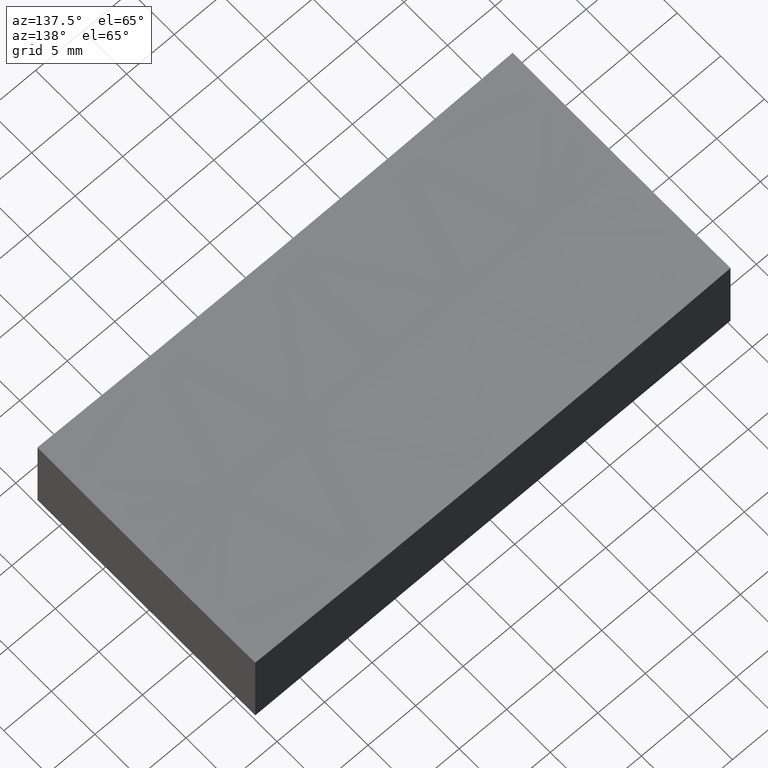
[diagram: clean part render]
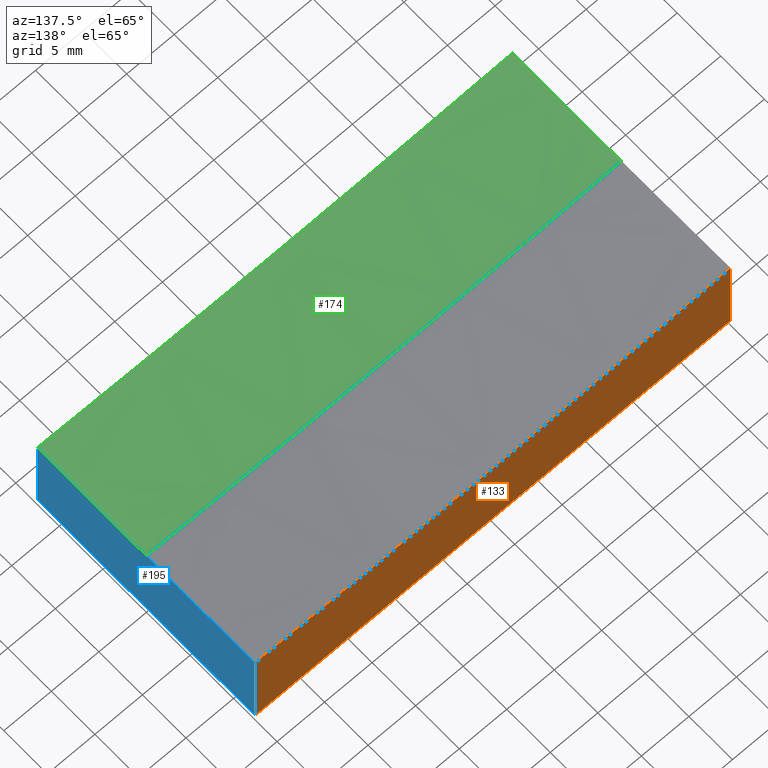
[diagram: same view with three faces highlighted in distinct colors, each labeled with its STEP entity id]
A machine part, auxiliary view with three faces highlighted in distinct colors.
Their STEP definitions:

[orange] entity #133 — the highlighted planar face has unit normal (0, -1, 0).
#3 = FACE_OUTER_BOUND ( 'NONE', #208, .T. ) ;
#8 = VERTEX_POINT ( 'NONE', #211 ) ;
#9 = CARTESIAN_POINT ( 'NONE',  ( 25.00000000000000355, 12.50000000000000000, 0.000000000000000000 ) ) ;
#16 = CIRCLE ( 'NONE', #189, 599.8697775350913162 ) ;
#22 = CARTESIAN_POINT ( 'NONE',  ( 25.00000000000000355, 12.50000000000000000, 15.00000000000000000 ) ) ;
#26 = VERTEX_POINT ( 'NONE', #9 ) ;
#31 = CARTESIAN_POINT ( 'NONE',  ( -25.00000000000000000, 12.50000000000000000, 0.000000000000000000 ) ) ;
#33 = EDGE_CURVE ( 'NONE', #26, #229, #132, .T. ) ;
#39 = VECTOR ( 'NONE', #160, 1000.000000000000000 ) ;
#46 = VERTEX_POINT ( 'NONE', #167 ) ;
#60 = DIRECTION ( 'NONE',  ( -0.000000000000000000, 1.000000000000000000, -0.000000000000000000 ) ) ;
#69 = VECTOR ( 'NONE', #161, 1000.000000000000000 ) ;
#73 = AXIS2_PLACEMENT_3D ( 'NONE', #162, #83, #219 ) ;
#77 = LINE ( 'NONE', #240, #69 ) ;
#78 = PLANE ( 'NONE',  #73 ) ;
#80 = CARTESIAN_POINT ( 'NONE',  ( 0.000000000000000000, 12.50000000000000000, 609.0000000000000000 ) ) ;
#83 = DIRECTION ( 'NONE',  ( 0.000000000000000000, -1.000000000000000000, 0.000000000000000000 ) ) ;
#96 = CARTESIAN_POINT ( 'NONE',  ( -25.00000000000000000, 12.50000000000000000, 0.000000000000000000 ) ) ;
#126 = ORIENTED_EDGE ( 'NONE', *, *, #151, .T. ) ;
#129 = DIRECTION ( 'NONE',  ( -1.000000000000000000, -0.000000000000000000, -0.000000000000000000 ) ) ;
#130 = DIRECTION ( 'NONE',  ( 0.000000000000000000, 0.000000000000000000, -1.000000000000000000 ) ) ;
#132 = LINE ( 'NONE', #31, #218 ) ;
#133 = ADVANCED_FACE ( 'NONE', ( #3 ), #78, .F. ) ;
#145 = ORIENTED_EDGE ( 'NONE', *, *, #242, .F. ) ;
#151 = EDGE_CURVE ( 'NONE', #46, #26, #201, .T. ) ;
#160 = DIRECTION ( 'NONE',  ( -0.000000000000000000, -0.000000000000000000, -1.000000000000000000 ) ) ;
#161 = DIRECTION ( 'NONE',  ( -0.000000000000000000, -0.000000000000000000, -1.000000000000000000 ) ) ;
#162 = CARTESIAN_POINT ( 'NONE',  ( -25.00000000000000000, 12.50000000000000000, 15.00000000000000000 ) ) ;
#165 = ORIENTED_EDGE ( 'NONE', *, *, #33, .T. ) ;
#167 = CARTESIAN_POINT ( 'NONE',  ( 25.00000000000000355, 12.50000000000000000, 9.651395263157391824 ) ) ;
#183 = ORIENTED_EDGE ( 'NONE', *, *, #193, .F. ) ;
#189 = AXIS2_PLACEMENT_3D ( 'NONE', #80, #60, #130 ) ;
#193 = EDGE_CURVE ( 'NONE', #46, #8, #16, .T. ) ;
#201 = LINE ( 'NONE', #22, #39 ) ;
#208 = EDGE_LOOP ( 'NONE', ( #183, #126, #165, #145 ) ) ;
#211 = CARTESIAN_POINT ( 'NONE',  ( -25.00000000000000000, 12.50000000000000000, 9.651395263157391824 ) ) ;
#218 = VECTOR ( 'NONE', #129, 1000.000000000000000 ) ;
#219 = DIRECTION ( 'NONE',  ( 0.000000000000000000, -0.000000000000000000, -1.000000000000000000 ) ) ;
#229 = VERTEX_POINT ( 'NONE', #96 ) ;
#240 = CARTESIAN_POINT ( 'NONE',  ( -25.00000000000000000, 12.50000000000000000, 15.00000000000000000 ) ) ;
#242 = EDGE_CURVE ( 'NONE', #8, #229, #77, .T. ) ;

[blue] entity #195 — the highlighted planar face has unit normal (-1, 0, 0).
#9 = CARTESIAN_POINT ( 'NONE',  ( 25.00000000000000355, 12.50000000000000000, 0.000000000000000000 ) ) ;
#12 = ORIENTED_EDGE ( 'NONE', *, *, #101, .F. ) ;
#13 = CARTESIAN_POINT ( 'NONE',  ( 25.00000000000000000, -6.938893903907228378E-15, 609.0000000000000000 ) ) ;
#20 = LINE ( 'NONE', #57, #233 ) ;
#21 = CARTESIAN_POINT ( 'NONE',  ( 25.00000000000000000, -6.938893903907228378E-15, 609.0000000000000000 ) ) ;
#22 = CARTESIAN_POINT ( 'NONE',  ( 25.00000000000000355, 12.50000000000000000, 15.00000000000000000 ) ) ;
#26 = VERTEX_POINT ( 'NONE', #9 ) ;
#27 = DIRECTION ( 'NONE',  ( 1.000000000000000000, -2.775557561562891351E-16, -0.000000000000000000 ) ) ;
#28 = EDGE_LOOP ( 'NONE', ( #59, #181, #121, #206, #12 ) ) ;
#35 = DIRECTION ( 'NONE',  ( 2.775557561562891351E-16, 1.000000000000000000, -0.000000000000000000 ) ) ;
#39 = VECTOR ( 'NONE', #160, 1000.000000000000000 ) ;
#41 = DIRECTION ( 'NONE',  ( -0.000000000000000000, -0.000000000000000000, -1.000000000000000000 ) ) ;
#46 = VERTEX_POINT ( 'NONE', #167 ) ;
#56 = EDGE_CURVE ( 'NONE', #62, #79, #110, .T. ) ;
#57 = CARTESIAN_POINT ( 'NONE',  ( 25.00000000000000355, 12.50000000000000000, 0.000000000000000000 ) ) ;
#58 = DIRECTION ( 'NONE',  ( -2.777970041428653968E-16, -1.000000000000000000, 0.000000000000000000 ) ) ;
#59 = ORIENTED_EDGE ( 'NONE', *, *, #56, .F. ) ;
#62 = VERTEX_POINT ( 'NONE', #107 ) ;
#64 = FACE_OUTER_BOUND ( 'NONE', #28, .T. ) ;
#79 = VERTEX_POINT ( 'NONE', #250 ) ;
#86 = PLANE ( 'NONE',  #89 ) ;
#88 = AXIS2_PLACEMENT_3D ( 'NONE', #13, #27, #209 ) ;
#89 = AXIS2_PLACEMENT_3D ( 'NONE', #168, #248, #187 ) ;
#98 = CARTESIAN_POINT ( 'NONE',  ( 24.99999999999999645, -12.50000000000000000, 15.00000000000000000 ) ) ;
#101 = EDGE_CURVE ( 'NONE', #79, #46, #127, .T. ) ;
#107 = CARTESIAN_POINT ( 'NONE',  ( 24.99999999999999645, -12.50000000000000000, 9.651395263157391824 ) ) ;
#110 = CIRCLE ( 'NONE', #88, 599.4789404140898341 ) ;
#117 = EDGE_CURVE ( 'NONE', #62, #182, #221, .T. ) ;
#121 = ORIENTED_EDGE ( 'NONE', *, *, #220, .T. ) ;
#127 = CIRCLE ( 'NONE', #237, 599.4789404140898341 ) ;
#151 = EDGE_CURVE ( 'NONE', #46, #26, #201, .T. ) ;
#160 = DIRECTION ( 'NONE',  ( -0.000000000000000000, -0.000000000000000000, -1.000000000000000000 ) ) ;
#167 = CARTESIAN_POINT ( 'NONE',  ( 25.00000000000000355, 12.50000000000000000, 9.651395263157391824 ) ) ;
#168 = CARTESIAN_POINT ( 'NONE',  ( 25.00000000000000355, 12.50000000000000000, 15.00000000000000000 ) ) ;
#181 = ORIENTED_EDGE ( 'NONE', *, *, #117, .T. ) ;
#182 = VERTEX_POINT ( 'NONE', #205 ) ;
#187 = DIRECTION ( 'NONE',  ( -2.775557561562891351E-16, -1.000000000000000000, 0.000000000000000000 ) ) ;
#191 = VECTOR ( 'NONE', #41, 1000.000000000000000 ) ;
#195 = ADVANCED_FACE ( 'NONE', ( #64 ), #86, .F. ) ;
#201 = LINE ( 'NONE', #22, #39 ) ;
#205 = CARTESIAN_POINT ( 'NONE',  ( 24.99999999999999645, -12.50000000000000000, 0.000000000000000000 ) ) ;
#206 = ORIENTED_EDGE ( 'NONE', *, *, #151, .F. ) ;
#209 = DIRECTION ( 'NONE',  ( -2.777970041428653968E-16, -1.000000000000000000, 0.000000000000000000 ) ) ;
#220 = EDGE_CURVE ( 'NONE', #182, #26, #20, .T. ) ;
#221 = LINE ( 'NONE', #98, #191 ) ;
#233 = VECTOR ( 'NONE', #35, 1000.000000000000000 ) ;
#237 = AXIS2_PLACEMENT_3D ( 'NONE', #21, #241, #58 ) ;
#241 = DIRECTION ( 'NONE',  ( 1.000000000000000000, -2.775557561562891351E-16, -0.000000000000000000 ) ) ;
#248 = DIRECTION ( 'NONE',  ( -1.000000000000000000, 2.775557561562891351E-16, 0.000000000000000000 ) ) ;
#250 = CARTESIAN_POINT ( 'NONE',  ( 25.00000000000000000, 0.000000000000000000, 9.521059585910096601 ) ) ;

[green] entity #174 — the highlighted spherical surface has radius 600 mm.
#2 = DIRECTION ( 'NONE',  ( 0.000000000000000000, 0.000000000000000000, 1.000000000000000000 ) ) ;
#4 = DIRECTION ( 'NONE',  ( -0.000000000000000000, -1.000000000000000000, -0.000000000000000000 ) ) ;
#6 = EDGE_LOOP ( 'NONE', ( #169, #49, #207, #103, #128 ) ) ;
#7 = DIRECTION ( 'NONE',  ( 1.000000000000000000, 0.000000000000000000, 0.000000000000000000 ) ) ;
#13 = CARTESIAN_POINT ( 'NONE',  ( 25.00000000000000000, -6.938893903907228378E-15, 609.0000000000000000 ) ) ;
#19 = CIRCLE ( 'NONE', #119, 599.4789404140898341 ) ;
#23 = VERTEX_POINT ( 'NONE', #104 ) ;
#24 = DIRECTION ( 'NONE',  ( 0.000000000000000000, -1.000000000000000000, -0.000000000000000000 ) ) ;
#27 = DIRECTION ( 'NONE',  ( 1.000000000000000000, -2.775557561562891351E-16, -0.000000000000000000 ) ) ;
#32 = EDGE_CURVE ( 'NONE', #23, #45, #197, .T. ) ;
#38 = CARTESIAN_POINT ( 'NONE',  ( -24.99999999999998934, -12.49999999999999645, 9.651395263157391824 ) ) ;
#45 = VERTEX_POINT ( 'NONE', #184 ) ;
#47 = DIRECTION ( 'NONE',  ( 1.000000000000000000, 1.224646799147353207E-16, 0.000000000000000000 ) ) ;
#49 = ORIENTED_EDGE ( 'NONE', *, *, #150, .T. ) ;
#53 = CIRCLE ( 'NONE', #198, 599.8697775350914299 ) ;
#56 = EDGE_CURVE ( 'NONE', #62, #79, #110, .T. ) ;
#62 = VERTEX_POINT ( 'NONE', #107 ) ;
#76 = DIRECTION ( 'NONE',  ( 1.776356839400250149E-14, 0.000000000000000000, 1.000000000000000000 ) ) ;
#79 = VERTEX_POINT ( 'NONE', #250 ) ;
#88 = AXIS2_PLACEMENT_3D ( 'NONE', #13, #27, #209 ) ;
#99 = DIRECTION ( 'NONE',  ( -1.388985020714326984E-16, 1.000000000000000000, 0.000000000000000000 ) ) ;
#102 = SPHERICAL_SURFACE ( 'NONE', #171, 600.0000000000000000 ) ;
#103 = ORIENTED_EDGE ( 'NONE', *, *, #56, .T. ) ;
#104 = CARTESIAN_POINT ( 'NONE',  ( -25.00000000000000000, -3.061616997868383043E-15, 9.521059585910096601 ) ) ;
#107 = CARTESIAN_POINT ( 'NONE',  ( 24.99999999999999645, -12.50000000000000000, 9.651395263157391824 ) ) ;
#109 = AXIS2_PLACEMENT_3D ( 'NONE', #118, #178, #2 ) ;
#110 = CIRCLE ( 'NONE', #88, 599.4789404140898341 ) ;
#118 = CARTESIAN_POINT ( 'NONE',  ( 0.000000000000000000, 0.000000000000000000, 609.0000000000000000 ) ) ;
#119 = AXIS2_PLACEMENT_3D ( 'NONE', #139, #120, #99 ) ;
#120 = DIRECTION ( 'NONE',  ( -1.000000000000000000, -1.387778780781445676E-16, 0.000000000000000000 ) ) ;
#128 = ORIENTED_EDGE ( 'NONE', *, *, #239, .T. ) ;
#139 = CARTESIAN_POINT ( 'NONE',  ( -25.00000000000000000, -3.469446951953614189E-15, 609.0000000000000000 ) ) ;
#140 = AXIS2_PLACEMENT_3D ( 'NONE', #146, #227, #47 ) ;
#143 = CARTESIAN_POINT ( 'NONE',  ( 0.000000000000000000, 0.000000000000000000, 609.0000000000000000 ) ) ;
#146 = CARTESIAN_POINT ( 'NONE',  ( 0.000000000000000000, 0.000000000000000000, 609.0000000000000000 ) ) ;
#150 = EDGE_CURVE ( 'NONE', #23, #166, #19, .T. ) ;
#152 = CIRCLE ( 'NONE', #109, 600.0000000000001137 ) ;
#156 = EDGE_CURVE ( 'NONE', #166, #62, #53, .T. ) ;
#166 = VERTEX_POINT ( 'NONE', #38 ) ;
#169 = ORIENTED_EDGE ( 'NONE', *, *, #32, .F. ) ;
#171 = AXIS2_PLACEMENT_3D ( 'NONE', #143, #24, #7 ) ;
#174 = ADVANCED_FACE ( 'NONE', ( #244 ), #102, .F. ) ;
#178 = DIRECTION ( 'NONE',  ( 0.000000000000000000, 1.000000000000000000, -0.000000000000000000 ) ) ;
#180 = CARTESIAN_POINT ( 'NONE',  ( 0.000000000000000000, -12.49999999999999645, 609.0000000000000000 ) ) ;
#184 = CARTESIAN_POINT ( 'NONE',  ( 3.670038055528952072E-14, 0.000000000000000000, 9.000000000000007105 ) ) ;
#197 = CIRCLE ( 'NONE', #140, 600.0000000000000000 ) ;
#198 = AXIS2_PLACEMENT_3D ( 'NONE', #180, #4, #76 ) ;
#207 = ORIENTED_EDGE ( 'NONE', *, *, #156, .T. ) ;
#209 = DIRECTION ( 'NONE',  ( -2.777970041428653968E-16, -1.000000000000000000, 0.000000000000000000 ) ) ;
#227 = DIRECTION ( 'NONE',  ( 1.224646799147353207E-16, -1.000000000000000000, -7.964984221775759500E-36 ) ) ;
#239 = EDGE_CURVE ( 'NONE', #79, #45, #152, .T. ) ;
#244 = FACE_OUTER_BOUND ( 'NONE', #6, .T. ) ;
#250 = CARTESIAN_POINT ( 'NONE',  ( 25.00000000000000000, 0.000000000000000000, 9.521059585910096601 ) ) ;